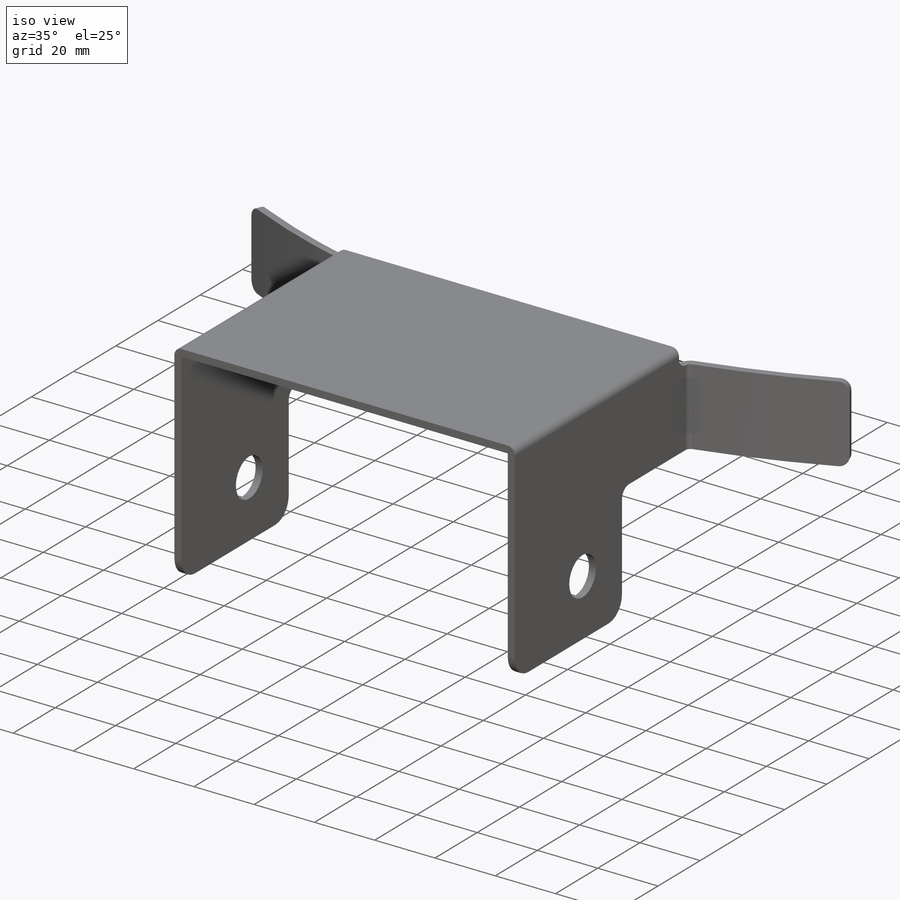
[diagram: iso view]
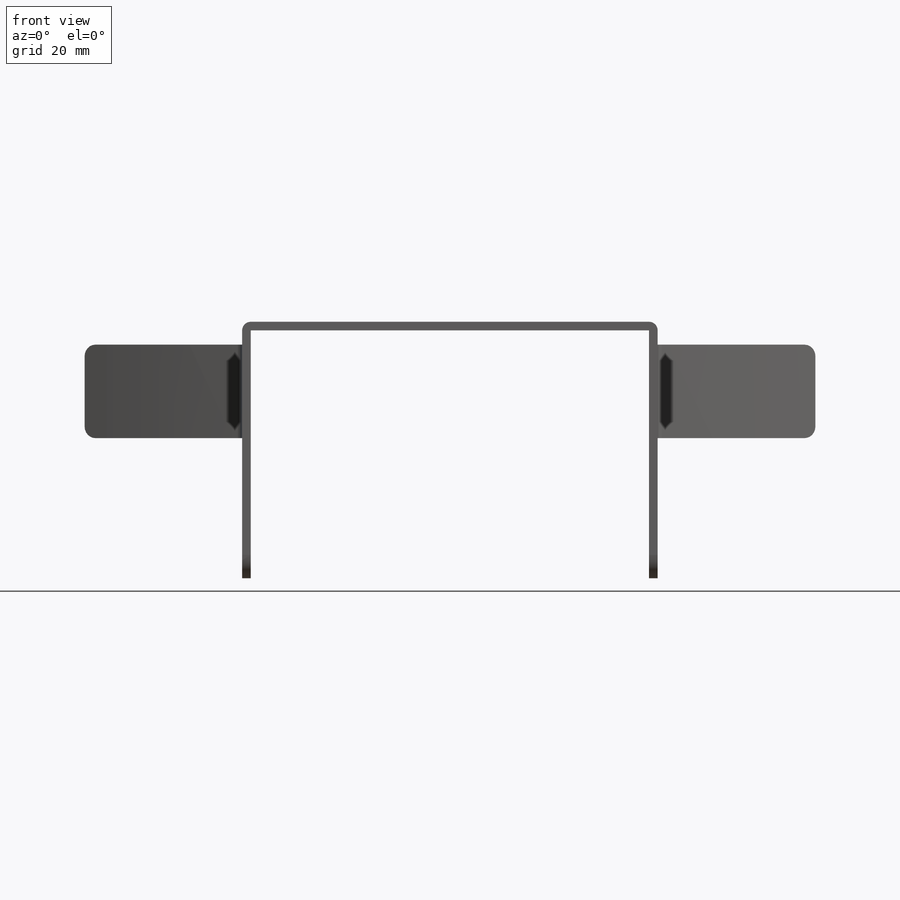
[diagram: front view]
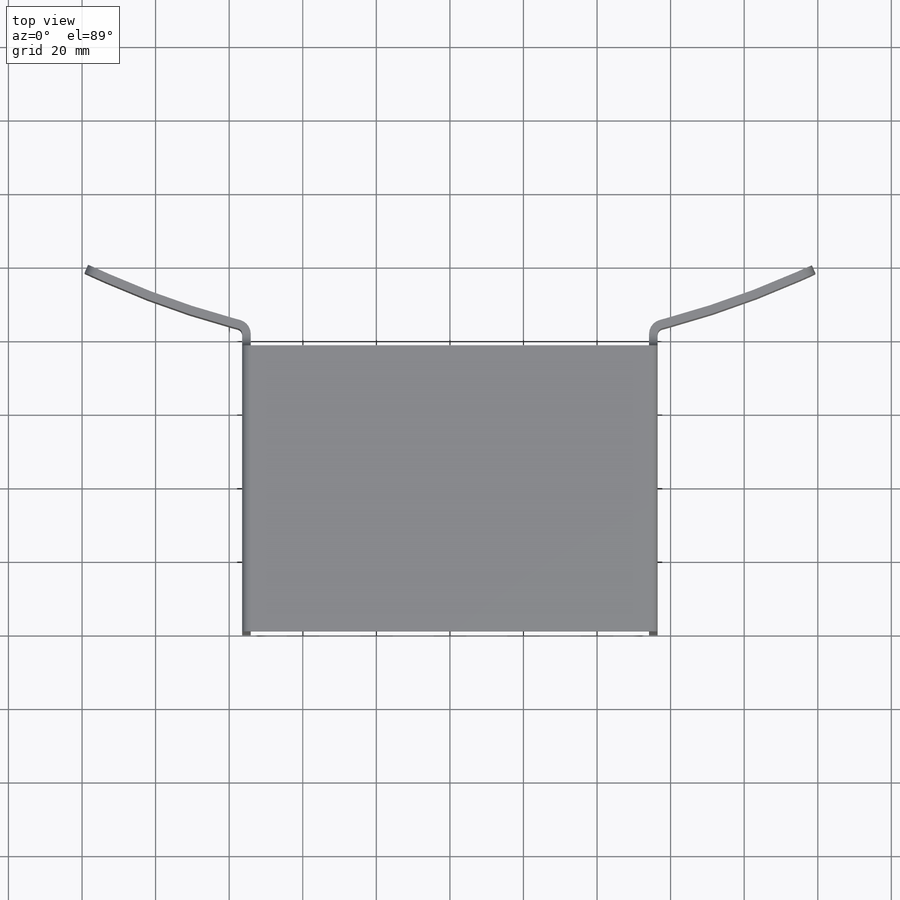
[diagram: top view]
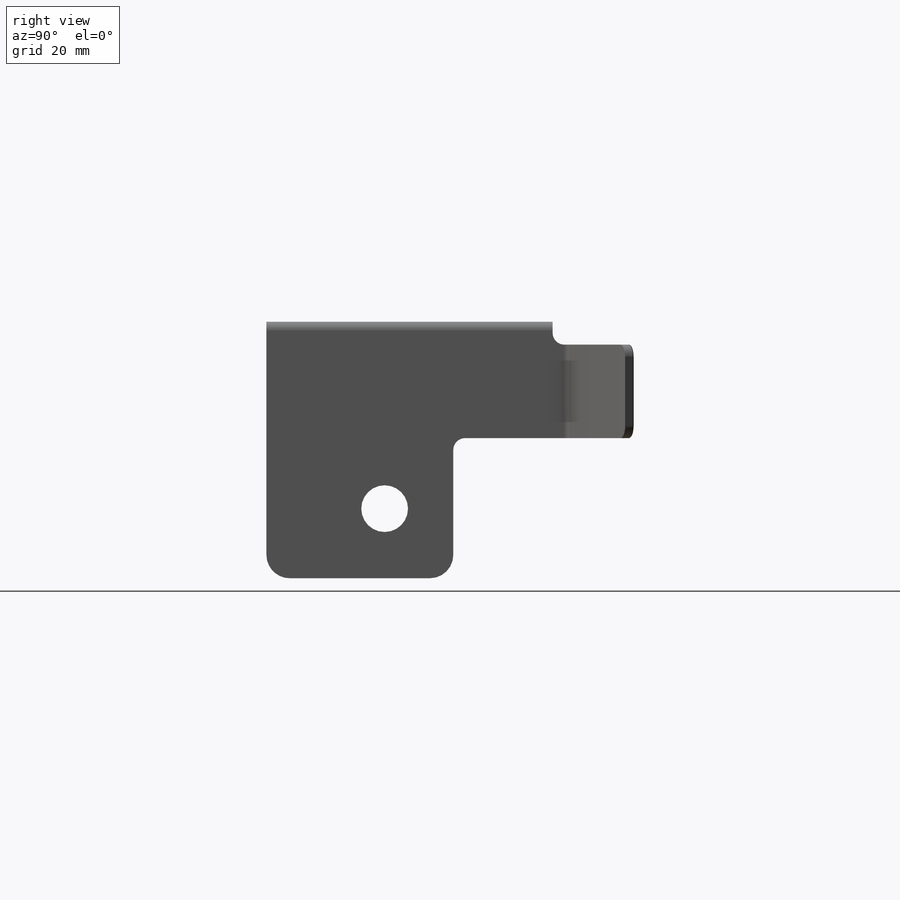
[diagram: right view]
SOLIDWORKS PART (.sldprt)
format: sldprt  version: not decoded by parser v0  size: 410,112 bytes
history: native  units: mm
features: sketch x13, sheet_metal_op x3, fillet x2, cut_extrude x2, material x1 + 16 further entries (+12 scaffold rows collapsed; 1 parser-record rows omitted)
feature tree (50):
  scaffold x12  (default folders/planes/origin — collapsed)
  material  "AISI 304"
  sketch  "Sketch1"  dims[c1.D1=26.9875mm c1.D2=25.4mm c1.D3=170.1165mm c1.D4=38.1mm c1.D5=50.8mm c1.D6=50.8mm c2.D1=0.7366mm c2.D2=0.446 c2.D3=0.0mm c2.D6=500.0mm]
  sheet_metal_op  "Base-Flange1"
  fillet  "Fillet1"  Radius=6.35mm
  fillet  "Fillet2"  Radius=3.175mm
  sketch  "Sketch6"
  parser-record x1  (decoder bookkeeping rows leaked as tree rows — omitted from the tree; the rows remain in map.json)
  "SketchBend2"
  sketch  "Sketch7"
  "SketchBend3"
  sketch  "Sketch8"
  "SketchBend4"
  sketch  "Sketch9"  dims[D1=1.5875mm]
  "SketchBend5"
  sketch  "Sketch10"  dims[D1=1.5875mm]
  "SketchBend6"
  sketch  "Sketch11"  dims[D1=12.7mm D2=18.923mm D3=32.131mm]
  cut_extrude  "Cut-Extrude1"  [1 undecoded]
  sketch  "Bend-Lines1"
  sketch  "Bounding-Box1"
  sheet_metal_op  "Sheet-Metal(1)"
  "Flat-Pattern(1)"
  sketch  "Bend-Lines2"
  sketch  "Bounding-Box2"
  "Flatten-<SketchBend2>1"
  "Flatten-<SketchBend3>1"
  "Flatten-<SketchBend4>1"
  "Flatten-<SketchBend5>1"
  cut_extrude  "Sheet-Metal(2)"  Depth=0.7366mm
  sheet_metal_op  "Flat-Pattern(1)"
  sketch  "Bend-Lines2"
  sketch  "Bounding-Box2"
  "Flatten-<SketchBend1>1"
  "Flatten-<SketchBend2>1"
  "Flatten-<SketchBend3>1"
  "Flatten-<SketchBend4>1"
  "Flatten-<SketchBend5>1"
  "Flatten-<SketchBend6>1"
decode coverage: 7 of 20 modeling features carry decoded parameters; 16 rows unclassified (native names shown)
note: 1 parameter value undecoded
note: suppression state not decoded; provenance and decode notes live in map.json
